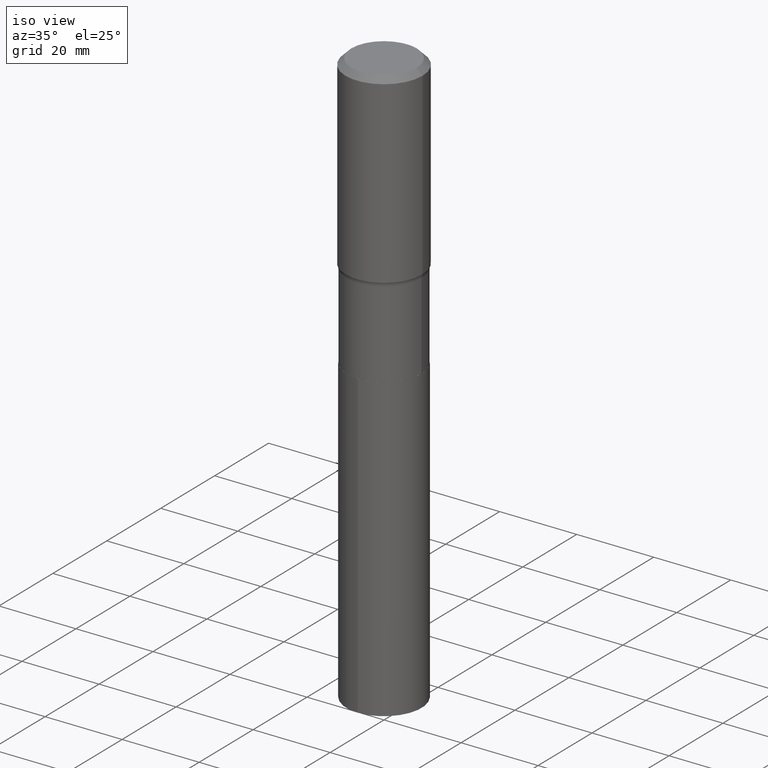
[diagram: clean part render]
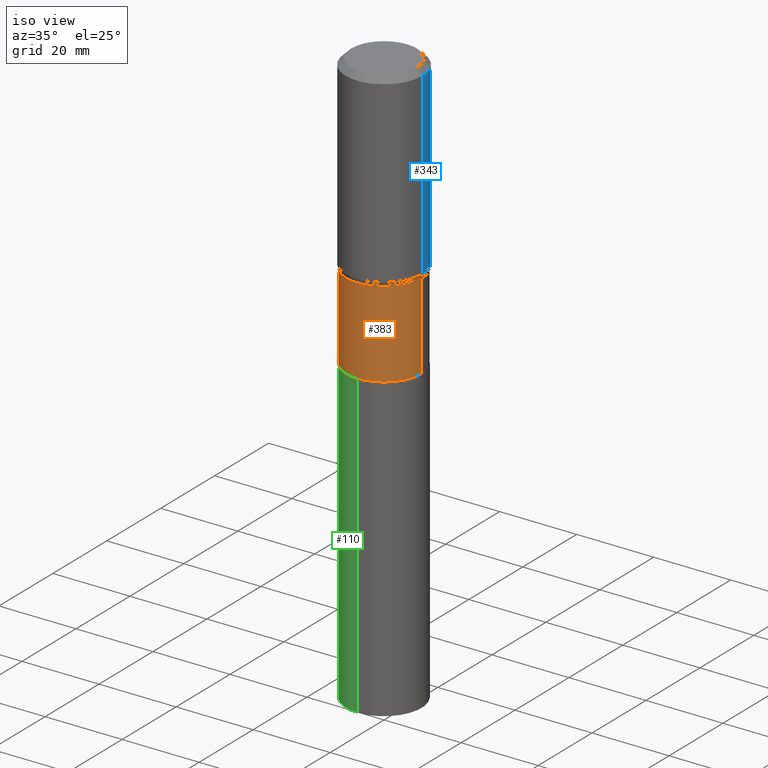
[diagram: same view with three faces highlighted in distinct colors, each labeled with its STEP entity id]
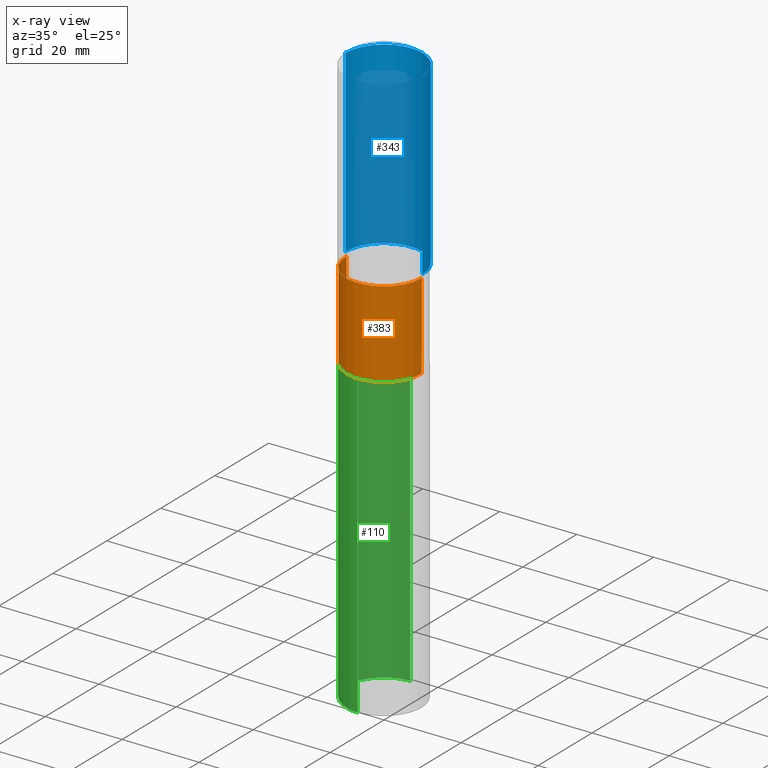
[diagram: x-ray of the same camera — body ghosted, the three highlighted faces saturated]
A machine part, iso view with three faces highlighted in distinct colors.
The next image is the same camera in x-ray (body ghosted, the three faces saturated) — at least one of them is partly hidden behind the body in this view.
Their STEP definitions:

[orange] entity #383 — the highlighted cylindrical surface (partial cylindrical patch) has radius 9.7498 mm, axis along (-0, 0, 1).
#5 = CARTESIAN_POINT ( 'NONE',  ( 0.3838500000000000800, -1.250683530387001944E-14, -2.814399999999999569 ) ) ;
#35 = CARTESIAN_POINT ( 'NONE',  ( 0.000000000000000000, 0.000000000000000000, 0.000000000000000000 ) ) ;
#36 = DIRECTION ( 'NONE',  ( 1.000000000000000000, -6.982962677686266711E-15, 0.000000000000000000 ) ) ;
#52 = CIRCLE ( 'NONE', #481, 0.3838499999999998580 ) ;
#91 = EDGE_CURVE ( 'NONE', #281, #325, #448, .T. ) ;
#149 = ORIENTED_EDGE ( 'NONE', *, *, #91, .F. ) ;
#170 = AXIS2_PLACEMENT_3D ( 'NONE', #461, #341, #423 ) ;
#192 = DIRECTION ( 'NONE',  ( -2.445468806185136877E-29, 3.491481338843145188E-15, 1.000000000000000000 ) ) ;
#218 = DIRECTION ( 'NONE',  ( -2.445468806185136597E-29, 3.491481338843145583E-15, 1.000000000000000000 ) ) ;
#222 = FACE_OUTER_BOUND ( 'NONE', #396, .T. ) ;
#229 = CARTESIAN_POINT ( 'NONE',  ( 0.3838499999999999135, -2.680410223829873215E-15, 1.871720455389269636E-29 ) ) ;
#254 = ORIENTED_EDGE ( 'NONE', *, *, #478, .T. ) ;
#264 = LINE ( 'NONE', #229, #482 ) ;
#265 = CIRCLE ( 'NONE', #170, 0.3838500000000000800 ) ;
#276 = CARTESIAN_POINT ( 'NONE',  ( -0.3838499999999998580, -5.558565222127407178E-15, -1.931999999999999940 ) ) ;
#279 = EDGE_CURVE ( 'NONE', #325, #314, #52, .T. ) ;
#281 = VERTEX_POINT ( 'NONE', #491 ) ;
#290 = DIRECTION ( 'NONE',  ( -2.445468806185136877E-29, 3.491481338843145188E-15, 1.000000000000000000 ) ) ;
#302 = CARTESIAN_POINT ( 'NONE',  ( 4.724645733549684143E-29, -6.745541946644958002E-15, -1.931999999999999940 ) ) ;
#313 = CARTESIAN_POINT ( 'NONE',  ( 0.3838499999999998580, -9.425952170474830034E-15, -1.931999999999999940 ) ) ;
#314 = VERTEX_POINT ( 'NONE', #313 ) ;
#325 = VERTEX_POINT ( 'NONE', #276 ) ;
#338 = DIRECTION ( 'NONE',  ( 1.000000000000000000, -6.982962677686267499E-15, 4.876176775795935793E-29 ) ) ;
#341 = DIRECTION ( 'NONE',  ( -2.445468806185136597E-29, 3.491481338843145583E-15, 1.000000000000000000 ) ) ;
#380 = CYLINDRICAL_SURFACE ( 'NONE', #390, 0.3838499999999999135 ) ;
#381 = DIRECTION ( 'NONE',  ( -2.445468806185136597E-29, 3.491481338843145583E-15, 1.000000000000000000 ) ) ;
#383 = ADVANCED_FACE ( 'NONE', ( #222 ), #380, .T. ) ;
#390 = AXIS2_PLACEMENT_3D ( 'NONE', #35, #218, #338 ) ;
#394 = ORIENTED_EDGE ( 'NONE', *, *, #279, .F. ) ;
#396 = EDGE_LOOP ( 'NONE', ( #149, #403, #254, #394 ) ) ;
#403 = ORIENTED_EDGE ( 'NONE', *, *, #463, .T. ) ;
#413 = CARTESIAN_POINT ( 'NONE',  ( -0.3838499999999999135, 2.727418291215143949E-15, -1.888133234394345397E-29 ) ) ;
#423 = DIRECTION ( 'NONE',  ( 1.000000000000000000, -6.982962677686265922E-15, 0.000000000000000000 ) ) ;
#429 = VECTOR ( 'NONE', #290, 39.37007874015748143 ) ;
#448 = LINE ( 'NONE', #413, #429 ) ;
#461 = CARTESIAN_POINT ( 'NONE',  ( 6.882527408127446858E-29, -9.826425080040145830E-15, -2.814399999999999569 ) ) ;
#463 = EDGE_CURVE ( 'NONE', #281, #468, #265, .T. ) ;
#468 = VERTEX_POINT ( 'NONE', #5 ) ;
#478 = EDGE_CURVE ( 'NONE', #468, #314, #264, .T. ) ;
#481 = AXIS2_PLACEMENT_3D ( 'NONE', #302, #381, #36 ) ;
#482 = VECTOR ( 'NONE', #192, 39.37007874015748143 ) ;
#491 = CARTESIAN_POINT ( 'NONE',  ( -0.3838500000000000800, -5.558565222127405601E-15, -2.814399999999999569 ) ) ;

[blue] entity #343 — the highlighted cylindrical surface (partial cylindrical patch) has radius 10 mm, axis along (-0, 0, 1).
#3 = CARTESIAN_POINT ( 'NONE',  ( 1.444171603492641897E-30, -2.061894304653833219E-16, -0.05905500000000039190 ) ) ;
#17 = EDGE_CURVE ( 'NONE', #266, #156, #437, .T. ) ;
#27 = VECTOR ( 'NONE', #434, 39.37007874015748143 ) ;
#34 = AXIS2_PLACEMENT_3D ( 'NONE', #354, #245, #174 ) ;
#38 = CARTESIAN_POINT ( 'NONE',  ( 0.3937000000000002164, -9.362261389830614750E-15, -1.894058235412674485 ) ) ;
#42 = DIRECTION ( 'NONE',  ( -2.445468806185136597E-29, 3.491481338843145583E-15, 1.000000000000000000 ) ) ;
#54 = DIRECTION ( 'NONE',  ( -2.445468806185136597E-29, 3.491481338843145583E-15, 1.000000000000000000 ) ) ;
#61 = ORIENTED_EDGE ( 'NONE', *, *, #470, .F. ) ;
#70 = LINE ( 'NONE', #217, #387 ) ;
#76 = CARTESIAN_POINT ( 'NONE',  ( -0.3937000000000002164, -3.815662232938014381E-15, -1.894058235412674485 ) ) ;
#95 = CARTESIAN_POINT ( 'NONE',  ( 0.3937000000000001054, -2.749192406205084005E-15, 1.919750796630860452E-29 ) ) ;
#97 = VERTEX_POINT ( 'NONE', #76 ) ;
#114 = CARTESIAN_POINT ( 'NONE',  ( 0.3937000000000000499, -2.955381836670466588E-15, -0.05905500000000039190 ) ) ;
#118 = EDGE_LOOP ( 'NONE', ( #442, #392, #61, #166 ) ) ;
#131 = CARTESIAN_POINT ( 'NONE',  ( 4.631860331799759695E-29, -6.613068983625529956E-15, -1.894058235412674485 ) ) ;
#152 = EDGE_CURVE ( 'NONE', #97, #242, #70, .T. ) ;
#156 = VERTEX_POINT ( 'NONE', #114 ) ;
#166 = ORIENTED_EDGE ( 'NONE', *, *, #17, .F. ) ;
#174 = DIRECTION ( 'NONE',  ( 1.000000000000000000, -6.982962677686266711E-15, 4.876176775795935793E-29 ) ) ;
#201 = DIRECTION ( 'NONE',  ( 1.000000000000000000, -6.982962677686269866E-15, 0.000000000000000000 ) ) ;
#206 = CYLINDRICAL_SURFACE ( 'NONE', #34, 0.3937000000000001054 ) ;
#217 = CARTESIAN_POINT ( 'NONE',  ( -0.3937000000000001054, 2.797406750687515181E-15, -1.936584745033357016E-29 ) ) ;
#242 = VERTEX_POINT ( 'NONE', #404 ) ;
#245 = DIRECTION ( 'NONE',  ( -2.445468806185136597E-29, 3.491481338843145583E-15, 1.000000000000000000 ) ) ;
#266 = VERTEX_POINT ( 'NONE', #38 ) ;
#272 = CIRCLE ( 'NONE', #407, 0.3937000000000002164 ) ;
#301 = DIRECTION ( 'NONE',  ( 1.000000000000000000, -6.982962677686265922E-15, 0.000000000000000000 ) ) ;
#304 = EDGE_CURVE ( 'NONE', #266, #97, #272, .T. ) ;
#337 = DIRECTION ( 'NONE',  ( -2.445468806185136877E-29, 3.491481338843145188E-15, 1.000000000000000000 ) ) ;
#343 = ADVANCED_FACE ( 'NONE', ( #395 ), #206, .T. ) ;
#354 = CARTESIAN_POINT ( 'NONE',  ( 0.000000000000000000, 0.000000000000000000, 0.000000000000000000 ) ) ;
#387 = VECTOR ( 'NONE', #337, 39.37007874015748143 ) ;
#392 = ORIENTED_EDGE ( 'NONE', *, *, #152, .T. ) ;
#395 = FACE_OUTER_BOUND ( 'NONE', #118, .T. ) ;
#404 = CARTESIAN_POINT ( 'NONE',  ( -0.3937000000000000499, -6.122224563579416798E-16, -0.05905500000000039190 ) ) ;
#407 = AXIS2_PLACEMENT_3D ( 'NONE', #131, #54, #201 ) ;
#414 = CIRCLE ( 'NONE', #439, 0.3937000000000000499 ) ;
#434 = DIRECTION ( 'NONE',  ( -2.445468806185136877E-29, 3.491481338843145188E-15, 1.000000000000000000 ) ) ;
#437 = LINE ( 'NONE', #95, #27 ) ;
#439 = AXIS2_PLACEMENT_3D ( 'NONE', #3, #42, #301 ) ;
#442 = ORIENTED_EDGE ( 'NONE', *, *, #304, .T. ) ;
#470 = EDGE_CURVE ( 'NONE', #156, #242, #414, .T. ) ;

[green] entity #110 — the highlighted cylindrical surface (partial cylindrical patch) has radius 9.7498 mm, axis along (-0, 0, 1).
#8 = AXIS2_PLACEMENT_3D ( 'NONE', #335, #384, #424 ) ;
#10 = ORIENTED_EDGE ( 'NONE', *, *, #165, .F. ) ;
#28 = DIRECTION ( 'NONE',  ( -2.445120379997572774E-29, 3.491980304974924025E-15, 1.000000000000000000 ) ) ;
#32 = CARTESIAN_POINT ( 'NONE',  ( 6.883750142530539659E-29, -9.828170820709568122E-15, -2.814899999999999736 ) ) ;
#94 = DIRECTION ( 'NONE',  ( -2.445120379997572774E-29, 3.491980304974924025E-15, 1.000000000000000000 ) ) ;
#110 = ADVANCED_FACE ( 'NONE', ( #213 ), #368, .T. ) ;
#121 = ORIENTED_EDGE ( 'NONE', *, *, #360, .F. ) ;
#134 = CARTESIAN_POINT ( 'NONE',  ( 1.443348124547393256E-28, -2.061026258805278371E-14, -5.902572559888804804 ) ) ;
#140 = CARTESIAN_POINT ( 'NONE',  ( 2.727418291215289099E-15, 0.3838499999999901435, -2.814900000000000624 ) ) ;
#142 = VERTEX_POINT ( 'NONE', #411 ) ;
#165 = EDGE_CURVE ( 'NONE', #142, #344, #183, .T. ) ;
#179 = DIRECTION ( 'NONE',  ( -6.982962677686266711E-15, -1.000000000000000000, 2.846787019579797858E-15 ) ) ;
#183 = LINE ( 'NONE', #334, #398 ) ;
#195 = EDGE_CURVE ( 'NONE', #234, #467, #363, .T. ) ;
#212 = CARTESIAN_POINT ( 'NONE',  ( -2.680410223829730037E-15, -0.3838500000000207302, -5.902572559888803916 ) ) ;
#213 = FACE_OUTER_BOUND ( 'NONE', #271, .T. ) ;
#223 = CIRCLE ( 'NONE', #8, 0.3838499999999999690 ) ;
#234 = VERTEX_POINT ( 'NONE', #212 ) ;
#244 = ORIENTED_EDGE ( 'NONE', *, *, #195, .T. ) ;
#249 = CIRCLE ( 'NONE', #291, 0.3838499999999999690 ) ;
#271 = EDGE_LOOP ( 'NONE', ( #10, #479, #244, #121 ) ) ;
#283 = AXIS2_PLACEMENT_3D ( 'NONE', #32, #28, #179 ) ;
#291 = AXIS2_PLACEMENT_3D ( 'NONE', #134, #94, #320 ) ;
#295 = EDGE_CURVE ( 'NONE', #142, #234, #249, .T. ) ;
#320 = DIRECTION ( 'NONE',  ( -6.982962677686266711E-15, -1.000000000000000000, 2.846787019579797858E-15 ) ) ;
#326 = CARTESIAN_POINT ( 'NONE',  ( -2.680410223829804190E-15, -0.3838500000000098500, -2.814899999999998403 ) ) ;
#332 = DIRECTION ( 'NONE',  ( -2.445120379997572494E-29, 3.491980304974924025E-15, 1.000000000000000000 ) ) ;
#334 = CARTESIAN_POINT ( 'NONE',  ( 2.727418291215212974E-15, 0.3838499999999901435, -2.814900000000000624 ) ) ;
#335 = CARTESIAN_POINT ( 'NONE',  ( 6.883750142530539659E-29, -9.828170820709568122E-15, -2.814899999999999736 ) ) ;
#344 = VERTEX_POINT ( 'NONE', #140 ) ;
#360 = EDGE_CURVE ( 'NONE', #344, #467, #223, .T. ) ;
#363 = LINE ( 'NONE', #326, #379 ) ;
#368 = CYLINDRICAL_SURFACE ( 'NONE', #283, 0.3838499999999999690 ) ;
#379 = VECTOR ( 'NONE', #332, 39.37007874015748143 ) ;
#384 = DIRECTION ( 'NONE',  ( -2.445120379997572774E-29, 3.491980304974924025E-15, 1.000000000000000000 ) ) ;
#398 = VECTOR ( 'NONE', #486, 39.37007874015748143 ) ;
#411 = CARTESIAN_POINT ( 'NONE',  ( 2.727418291215289494E-15, 0.3838499999999794854, -5.902572559888805692 ) ) ;
#424 = DIRECTION ( 'NONE',  ( -6.982962677686266711E-15, -1.000000000000000000, 2.846787019579797858E-15 ) ) ;
#453 = CARTESIAN_POINT ( 'NONE',  ( -2.680410223829804190E-15, -0.3838500000000098500, -2.814899999999998403 ) ) ;
#467 = VERTEX_POINT ( 'NONE', #453 ) ;
#479 = ORIENTED_EDGE ( 'NONE', *, *, #295, .T. ) ;
#486 = DIRECTION ( 'NONE',  ( -2.445120379997572494E-29, 3.491980304974924025E-15, 1.000000000000000000 ) ) ;